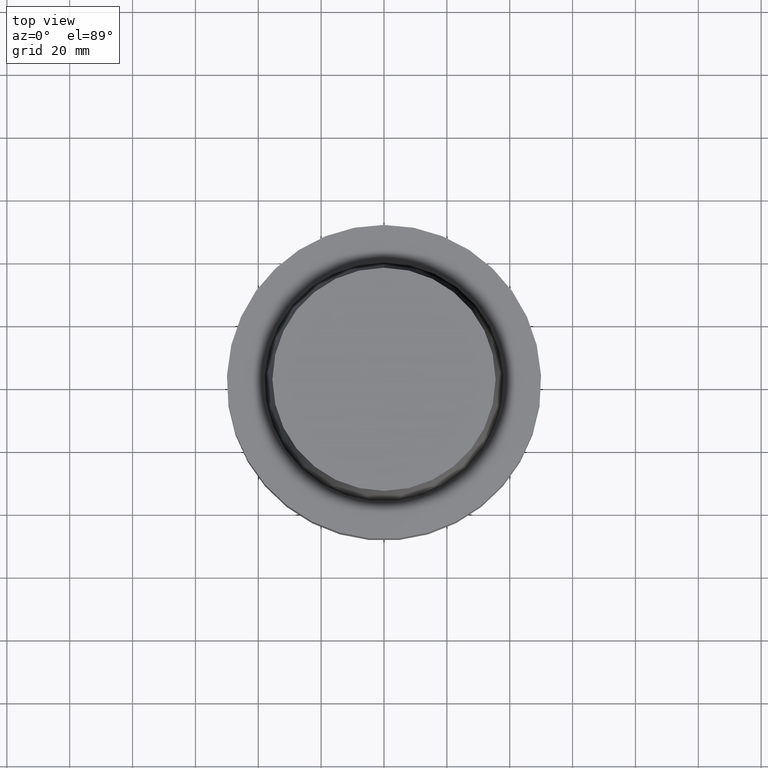
[diagram: clean part render]
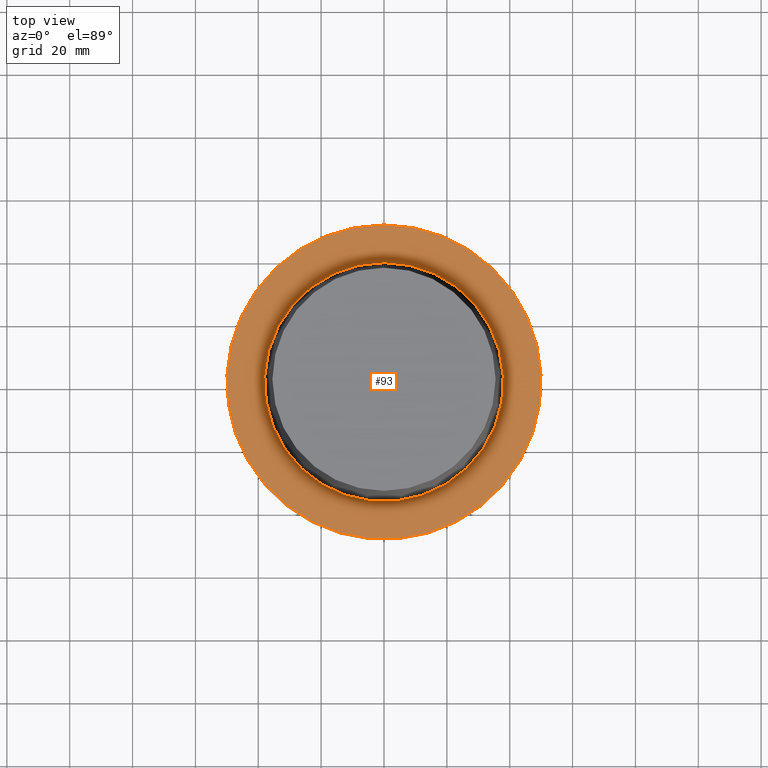
[diagram: same view with one face highlighted and labeled with its STEP entity id]
A machine part, top view. The second image highlights one B-rep face of the part: STEP entity #93.
In plain terms, the highlighted planar face has unit normal (-0, -0, 1).
Its self-contained STEP definition (entity closure, byte-faithful):
#81=EDGE_CURVE('Unnamed[1]',#222,#222,#223,.T.);
#93=ADVANCED_FACE('Unnamed[1]',(#239,#240),#241,.T.);
#160=EDGE_CURVE('Unnamed[1]',#346,#346,#347,.T.);
#222=VERTEX_POINT('',#422);
#223=CIRCLE('',#423,37.9999999999349);
#239=FACE_OUTER_BOUND('',#444,.T.);
#240=FACE_BOUND('',#445,.T.);
#241=PLANE('',#446);
#346=VERTEX_POINT('',#577);
#347=CIRCLE('',#578,50.0);
#422=CARTESIAN_POINT('',(-3.3636548776863E-032,37.9999999999349,-2.44634216324803E-015));
#423=AXIS2_PLACEMENT_3D('',#655,#656,#657);
#444=EDGE_LOOP('',(#673));
#445=EDGE_LOOP('',(#674));
#446=AXIS2_PLACEMENT_3D('',#675,#676,#677);
#577=CARTESIAN_POINT('',(-1.81547968506605E-031,50.0,-9.76766004263236E-016));
#578=AXIS2_PLACEMENT_3D('',#796,#797,#798);
#655=CARTESIAN_POINT('',(0.0,0.0,0.0));
#656=DIRECTION('',(6.12323399573677E-017,1.22464679914704E-016,-1.0));
#657=DIRECTION('',(-1.23259516440805E-032,1.0,1.22464679914704E-016));
#673=ORIENTED_EDGE('',*,*,#160,.F.);
#674=ORIENTED_EDGE('',*,*,#81,.T.);
#675=CARTESIAN_POINT('',(-1.07592258641734E-031,43.9999999999675,-1.71155408375563E-015));
#676=DIRECTION('',(-6.12323399573677E-017,-1.22464679914735E-016,1.0));
#677=DIRECTION('',(1.23259516440783E-032,-1.0,-1.22464679914735E-016));
#796=CARTESIAN_POINT('',(0.0,0.0,0.0));
#797=DIRECTION('',(6.12323399573677E-017,1.22464679914672E-016,-1.0));
#798=DIRECTION('',(-1.23259516440783E-032,1.0,1.22464679914672E-016));